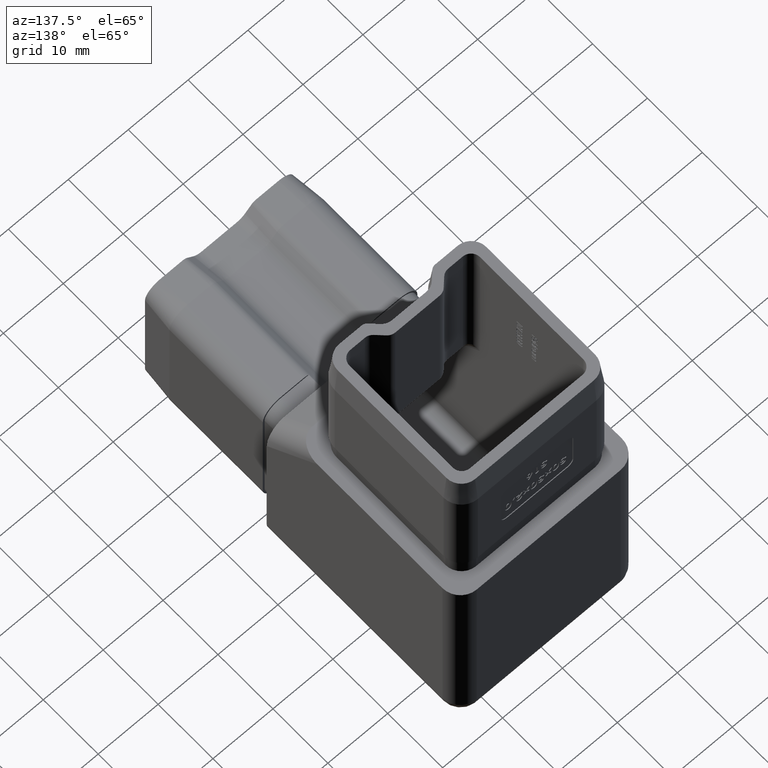
[diagram: clean part render]
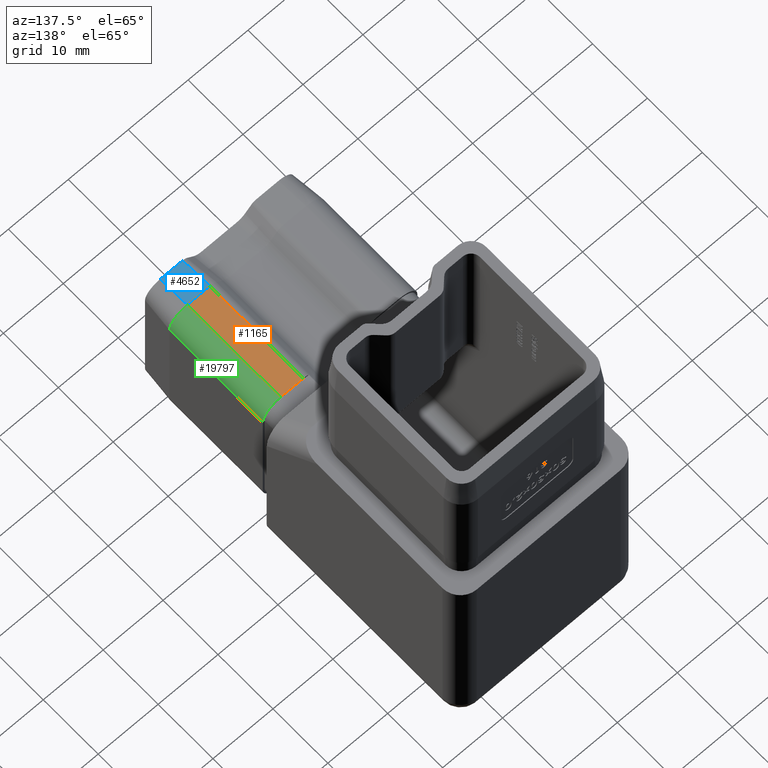
[diagram: same view with three faces highlighted in distinct colors, each labeled with its STEP entity id]
A machine part, auxiliary view with three faces highlighted in distinct colors.
Their STEP definitions:

[orange] entity #1165 — the highlighted planar face has unit normal (0, -0, 1).
#1165 = ADVANCED_FACE ( 'NONE', ( #18679 ), #18092, .T. ) ;
#1589 = ORIENTED_EDGE ( 'NONE', *, *, #8634, .T. ) ;
#2770 = CARTESIAN_POINT ( 'NONE',  ( 9.899999999999996800, -20.50000000000000400, 10.39999999999999300 ) ) ;
#2987 = EDGE_LOOP ( 'NONE', ( #22560, #17544, #1589, #20038 ) ) ;
#3217 = DIRECTION ( 'NONE',  ( 0.0000000000000000000, -4.440892098500625700E-016, 1.000000000000000000 ) ) ;
#3537 = VECTOR ( 'NONE', #4814, 1000.000000000000000 ) ;
#3717 = EDGE_CURVE ( 'NONE', #24092, #17069, #4607, .T. ) ;
#4607 = LINE ( 'NONE', #7556, #9653 ) ;
#4814 = DIRECTION ( 'NONE',  ( -1.000000000000000000, 0.0000000000000000000, 1.752245935330107700E-016 ) ) ;
#4907 = CARTESIAN_POINT ( 'NONE',  ( 9.899999999999998600, -37.50000000000000700, 10.39999999999997900 ) ) ;
#5278 = DIRECTION ( 'NONE',  ( 0.0000000000000000000, -1.000000000000000000, -4.440892098500625700E-016 ) ) ;
#7225 = LINE ( 'NONE', #2770, #3537 ) ;
#7556 = CARTESIAN_POINT ( 'NONE',  ( 6.121320343559645500, -42.50000000000000700, 10.39999999999998600 ) ) ;
#8169 = AXIS2_PLACEMENT_3D ( 'NONE', #26616, #3217, #5278 ) ;
#8634 = EDGE_CURVE ( 'NONE', #18285, #26861, #11079, .T. ) ;
#8819 = CARTESIAN_POINT ( 'NONE',  ( 9.900000000000002100, -42.50000000000000700, 10.39999999999998600 ) ) ;
#8897 = CARTESIAN_POINT ( 'NONE',  ( 6.121320343559641100, -37.50000000000000700, 10.39999999999997900 ) ) ;
#9653 = VECTOR ( 'NONE', #14024, 1000.000000000000000 ) ;
#11079 = LINE ( 'NONE', #8819, #21780 ) ;
#11266 = EDGE_CURVE ( 'NONE', #26861, #24092, #7225, .T. ) ;
#12566 = LINE ( 'NONE', #4907, #18572 ) ;
#14024 = DIRECTION ( 'NONE',  ( -0.0000000000000000000, -1.000000000000000000, -4.440892098500625700E-016 ) ) ;
#14254 = CARTESIAN_POINT ( 'NONE',  ( 6.121320343559645500, -20.50000000000000400, 10.39999999999999300 ) ) ;
#15014 = DIRECTION ( 'NONE',  ( 0.0000000000000000000, 1.000000000000000000, 4.440892098500625700E-016 ) ) ;
#15594 = DIRECTION ( 'NONE',  ( -1.000000000000000000, 0.0000000000000000000, 0.0000000000000000000 ) ) ;
#17069 = VERTEX_POINT ( 'NONE', #8897 ) ;
#17544 = ORIENTED_EDGE ( 'NONE', *, *, #25718, .F. ) ;
#17989 = CARTESIAN_POINT ( 'NONE',  ( 9.899999999999998600, -37.50000000000000700, 10.39999999999997900 ) ) ;
#18092 = PLANE ( 'NONE',  #8169 ) ;
#18285 = VERTEX_POINT ( 'NONE', #17989 ) ;
#18572 = VECTOR ( 'NONE', #15594, 1000.000000000000000 ) ;
#18679 = FACE_OUTER_BOUND ( 'NONE', #2987, .T. ) ;
#20038 = ORIENTED_EDGE ( 'NONE', *, *, #11266, .T. ) ;
#21780 = VECTOR ( 'NONE', #15014, 1000.000000000000000 ) ;
#22560 = ORIENTED_EDGE ( 'NONE', *, *, #3717, .T. ) ;
#22644 = CARTESIAN_POINT ( 'NONE',  ( 9.899999999999996800, -20.50000000000000400, 10.39999999999999300 ) ) ;
#24092 = VERTEX_POINT ( 'NONE', #14254 ) ;
#25718 = EDGE_CURVE ( 'NONE', #18285, #17069, #12566, .T. ) ;
#26616 = CARTESIAN_POINT ( 'NONE',  ( 12.90000000000000200, -42.50000000000000700, 10.39999999999998600 ) ) ;
#26861 = VERTEX_POINT ( 'NONE', #22644 ) ;

[blue] entity #4652 — the highlighted planar face has unit normal (0, -0.0995, 0.995).
#3919 = EDGE_CURVE ( 'NONE', #8902, #17069, #11156, .T. ) ;
#4652 = ADVANCED_FACE ( 'NONE', ( #6342 ), #15893, .T. ) ;
#4907 = CARTESIAN_POINT ( 'NONE',  ( 9.899999999999998600, -37.50000000000000700, 10.39999999999997900 ) ) ;
#5294 = DIRECTION ( 'NONE',  ( 0.0000000000000000000, -0.9950371902099890400, -0.09950371902099880400 ) ) ;
#6211 = AXIS2_PLACEMENT_3D ( 'NONE', #9715, #18016, #5294 ) ;
#6342 = FACE_OUTER_BOUND ( 'NONE', #27525, .T. ) ;
#7278 = EDGE_CURVE ( 'NONE', #13660, #8902, #9804, .T. ) ;
#8029 = VECTOR ( 'NONE', #24959, 1000.000000000000000 ) ;
#8473 = CARTESIAN_POINT ( 'NONE',  ( 9.899999999999998600, -42.50000000000000000, 9.899999999999982600 ) ) ;
#8897 = CARTESIAN_POINT ( 'NONE',  ( 6.121320343559641100, -37.50000000000000700, 10.39999999999997900 ) ) ;
#8902 = VERTEX_POINT ( 'NONE', #20703 ) ;
#9715 = CARTESIAN_POINT ( 'NONE',  ( 9.899999999999998600, -42.50000000000000000, 9.899999999999982600 ) ) ;
#9804 = LINE ( 'NONE', #8473, #11820 ) ;
#9899 = EDGE_CURVE ( 'NONE', #13660, #18285, #13715, .T. ) ;
#11156 = LINE ( 'NONE', #15865, #25134 ) ;
#11820 = VECTOR ( 'NONE', #16640, 1000.000000000000000 ) ;
#12316 = CARTESIAN_POINT ( 'NONE',  ( 9.899999999999998600, -42.50000000000000000, 9.899999999999982600 ) ) ;
#12566 = LINE ( 'NONE', #4907, #18572 ) ;
#13660 = VERTEX_POINT ( 'NONE', #23936 ) ;
#13715 = LINE ( 'NONE', #12316, #8029 ) ;
#15594 = DIRECTION ( 'NONE',  ( -1.000000000000000000, 0.0000000000000000000, 0.0000000000000000000 ) ) ;
#15865 = CARTESIAN_POINT ( 'NONE',  ( 6.121320343559641100, -42.50000000000000000, 9.899999999999982600 ) ) ;
#15893 = PLANE ( 'NONE',  #6211 ) ;
#16640 = DIRECTION ( 'NONE',  ( -1.000000000000000000, 0.0000000000000000000, 0.0000000000000000000 ) ) ;
#17069 = VERTEX_POINT ( 'NONE', #8897 ) ;
#17989 = CARTESIAN_POINT ( 'NONE',  ( 9.899999999999998600, -37.50000000000000700, 10.39999999999997900 ) ) ;
#18016 = DIRECTION ( 'NONE',  ( 0.0000000000000000000, -0.09950371902099881800, 0.9950371902099891500 ) ) ;
#18285 = VERTEX_POINT ( 'NONE', #17989 ) ;
#18572 = VECTOR ( 'NONE', #15594, 1000.000000000000000 ) ;
#18686 = ORIENTED_EDGE ( 'NONE', *, *, #7278, .F. ) ;
#19770 = ORIENTED_EDGE ( 'NONE', *, *, #25718, .T. ) ;
#20143 = DIRECTION ( 'NONE',  ( -2.308512126642456000E-016, 0.9950371902099891500, 0.09950371902099880400 ) ) ;
#20584 = ORIENTED_EDGE ( 'NONE', *, *, #3919, .F. ) ;
#20703 = CARTESIAN_POINT ( 'NONE',  ( 6.121320343559641100, -42.50000000000000000, 9.899999999999982600 ) ) ;
#23936 = CARTESIAN_POINT ( 'NONE',  ( 9.899999999999998600, -42.50000000000000000, 9.899999999999982600 ) ) ;
#24959 = DIRECTION ( 'NONE',  ( -2.308512126642456000E-016, 0.9950371902099891500, 0.09950371902099880400 ) ) ;
#25134 = VECTOR ( 'NONE', #20143, 1000.000000000000000 ) ;
#25718 = EDGE_CURVE ( 'NONE', #18285, #17069, #12566, .T. ) ;
#26024 = ORIENTED_EDGE ( 'NONE', *, *, #9899, .T. ) ;
#27525 = EDGE_LOOP ( 'NONE', ( #26024, #19770, #20584, #18686 ) ) ;

[green] entity #19797 — the highlighted cylindrical surface (edge-blend (fillet) strip) has radius 3 mm, axis along (0, 1, 0).
#801 = DIRECTION ( 'NONE',  ( -0.0000000000000000000, -1.000000000000000000, -4.440892098500625700E-016 ) ) ;
#887 = AXIS2_PLACEMENT_3D ( 'NONE', #21984, #10148, #1434 ) ;
#1434 = DIRECTION ( 'NONE',  ( 0.0000000000000000000, 0.0000000000000000000, 1.000000000000000000 ) ) ;
#1958 = CIRCLE ( 'NONE', #5948, 2.999999999999997300 ) ;
#3198 = ORIENTED_EDGE ( 'NONE', *, *, #20401, .F. ) ;
#4318 = CYLINDRICAL_SURFACE ( 'NONE', #887, 2.999999999999999100 ) ;
#4772 = CARTESIAN_POINT ( 'NONE',  ( 9.900000000000002100, -20.50000000000000000, 7.399999999999994100 ) ) ;
#5057 = DIRECTION ( 'NONE',  ( 0.0000000000000000000, 0.0000000000000000000, -1.000000000000000000 ) ) ;
#5948 = AXIS2_PLACEMENT_3D ( 'NONE', #4772, #7026, #5057 ) ;
#7026 = DIRECTION ( 'NONE',  ( 0.0000000000000000000, -1.000000000000000000, -4.440892098500625200E-016 ) ) ;
#7582 = CARTESIAN_POINT ( 'NONE',  ( 12.90000000000000200, -42.50000000000000000, 7.399999999999986100 ) ) ;
#8634 = EDGE_CURVE ( 'NONE', #18285, #26861, #11079, .T. ) ;
#8754 = CARTESIAN_POINT ( 'NONE',  ( 12.90000000000000000, -20.50000000000000000, 7.399999999999996800 ) ) ;
#8819 = CARTESIAN_POINT ( 'NONE',  ( 9.900000000000002100, -42.50000000000000700, 10.39999999999998600 ) ) ;
#9002 = EDGE_CURVE ( 'NONE', #24637, #18285, #20776, .T. ) ;
#10148 = DIRECTION ( 'NONE',  ( 0.0000000000000000000, 1.000000000000000000, 4.440892098500625700E-016 ) ) ;
#10703 = VECTOR ( 'NONE', #801, 1000.000000000000000 ) ;
#10852 = VERTEX_POINT ( 'NONE', #8754 ) ;
#11079 = LINE ( 'NONE', #8819, #21780 ) ;
#11353 = LINE ( 'NONE', #7582, #10703 ) ;
#15014 = DIRECTION ( 'NONE',  ( 0.0000000000000000000, 1.000000000000000000, 4.440892098500625700E-016 ) ) ;
#17048 = CARTESIAN_POINT ( 'NONE',  ( 9.900000000000002100, -37.50000000000000700, 7.399999999999987000 ) ) ;
#17628 = ORIENTED_EDGE ( 'NONE', *, *, #21102, .T. ) ;
#17989 = CARTESIAN_POINT ( 'NONE',  ( 9.899999999999998600, -37.50000000000000700, 10.39999999999997900 ) ) ;
#18285 = VERTEX_POINT ( 'NONE', #17989 ) ;
#18447 = ORIENTED_EDGE ( 'NONE', *, *, #8634, .F. ) ;
#18902 = DIRECTION ( 'NONE',  ( 0.0000000000000000000, -1.000000000000000000, -4.440892098500625200E-016 ) ) ;
#19797 = ADVANCED_FACE ( 'NONE', ( #23050 ), #4318, .T. ) ;
#20401 = EDGE_CURVE ( 'NONE', #10852, #24637, #11353, .T. ) ;
#20776 = CIRCLE ( 'NONE', #25160, 2.999999999999993800 ) ;
#21015 = CARTESIAN_POINT ( 'NONE',  ( 12.89999999999999700, -37.50000000000000700, 7.399999999999987900 ) ) ;
#21102 = EDGE_CURVE ( 'NONE', #10852, #26861, #1958, .T. ) ;
#21780 = VECTOR ( 'NONE', #15014, 1000.000000000000000 ) ;
#21984 = CARTESIAN_POINT ( 'NONE',  ( 9.900000000000002100, -42.50000000000000700, 7.399999999999986100 ) ) ;
#22644 = CARTESIAN_POINT ( 'NONE',  ( 9.899999999999996800, -20.50000000000000400, 10.39999999999999300 ) ) ;
#23050 = FACE_OUTER_BOUND ( 'NONE', #25898, .T. ) ;
#24637 = VERTEX_POINT ( 'NONE', #21015 ) ;
#25160 = AXIS2_PLACEMENT_3D ( 'NONE', #17048, #18902, #25551 ) ;
#25551 = DIRECTION ( 'NONE',  ( 0.0000000000000000000, 0.0000000000000000000, -1.000000000000000000 ) ) ;
#25898 = EDGE_LOOP ( 'NONE', ( #18447, #26508, #3198, #17628 ) ) ;
#26508 = ORIENTED_EDGE ( 'NONE', *, *, #9002, .F. ) ;
#26861 = VERTEX_POINT ( 'NONE', #22644 ) ;